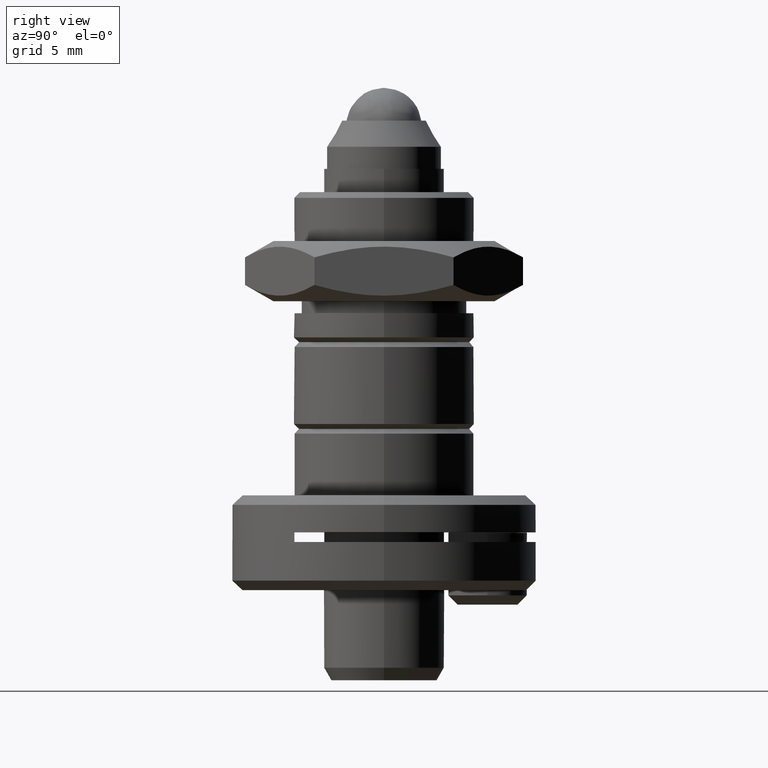
[diagram: clean part render]
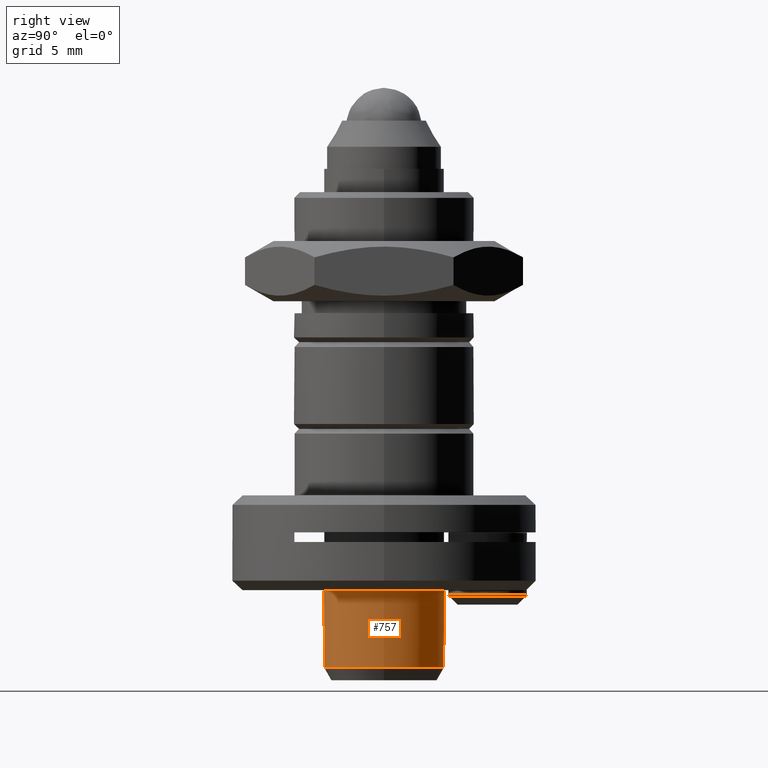
[diagram: same view with one face highlighted and labeled with its STEP entity id]
A machine part, right view. The second image highlights one B-rep face of the part: STEP entity #757.
In plain terms, the highlighted cylindrical surface (bore or boss wall) has radius 3.175 mm, axis along (0, 0, 1).
Its self-contained STEP definition (entity closure, byte-faithful):
#7 = FACE_OUTER_BOUND ( 'NONE', #1652, .T. ) ;
#175 = CARTESIAN_POINT ( 'NONE',  ( 0.000000000000000000, 3.174999999941973794, -26.35250000002997695 ) ) ;
#285 = AXIS2_PLACEMENT_3D ( 'NONE', #1035, #1858, #2490 ) ;
#344 = VERTEX_POINT ( 'NONE', #1206 ) ;
#520 = EDGE_LOOP ( 'NONE', ( #2517 ) ) ;
#640 = CARTESIAN_POINT ( 'NONE',  ( 0.000000000000000000, 0.000000000000000000, 2.024197507887718128 ) ) ;
#662 = EDGE_CURVE ( 'NONE', #344, #344, #1682, .T. ) ;
#670 = EDGE_CURVE ( 'NONE', #2033, #2033, #1896, .T. ) ;
#757 = ADVANCED_FACE ( 'NONE', ( #7, #1669 ), #2087, .T. ) ;
#877 = DIRECTION ( 'NONE',  ( 1.000000000000000000, 0.000000000000000000, 0.000000000000000000 ) ) ;
#1016 = DIRECTION ( 'NONE',  ( 0.000000000000000000, 0.000000000000000000, 1.000000000000000000 ) ) ;
#1035 = CARTESIAN_POINT ( 'NONE',  ( 0.000000000000000000, 0.000000000000000000, -26.35250000002997695 ) ) ;
#1120 = ORIENTED_EDGE ( 'NONE', *, *, #670, .T. ) ;
#1206 = CARTESIAN_POINT ( 'NONE',  ( 3.174999999999999822, 0.000000000000000000, -30.58208864230439872 ) ) ;
#1247 = CARTESIAN_POINT ( 'NONE',  ( 0.000000000000000000, 0.000000000000000000, -30.58208864230439872 ) ) ;
#1421 = DIRECTION ( 'NONE',  ( 1.000000000000000000, 0.000000000000000000, 0.000000000000000000 ) ) ;
#1461 = DIRECTION ( 'NONE',  ( 0.000000000000000000, 0.000000000000000000, 1.000000000000000000 ) ) ;
#1652 = EDGE_LOOP ( 'NONE', ( #1120 ) ) ;
#1669 = FACE_OUTER_BOUND ( 'NONE', #520, .T. ) ;
#1682 = CIRCLE ( 'NONE', #2023, 3.174999999999999822 ) ;
#1858 = DIRECTION ( 'NONE',  ( 0.000000000000000000, 0.000000000000000000, -1.000000000000000000 ) ) ;
#1896 = CIRCLE ( 'NONE', #285, 3.174999999941973794 ) ;
#2023 = AXIS2_PLACEMENT_3D ( 'NONE', #1247, #1016, #1421 ) ;
#2033 = VERTEX_POINT ( 'NONE', #175 ) ;
#2087 = CYLINDRICAL_SURFACE ( 'NONE', #2195, 3.174999999999999822 ) ;
#2195 = AXIS2_PLACEMENT_3D ( 'NONE', #640, #1461, #877 ) ;
#2490 = DIRECTION ( 'NONE',  ( 0.000000000000000000, 1.000000000000000000, 0.000000000000000000 ) ) ;
#2517 = ORIENTED_EDGE ( 'NONE', *, *, #662, .T. ) ;